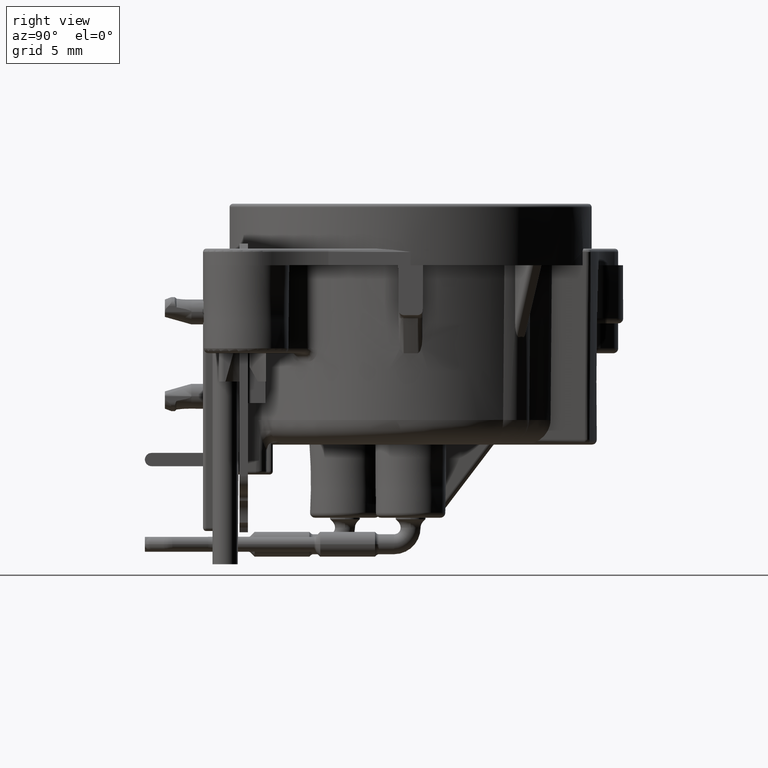
[diagram: clean part render]
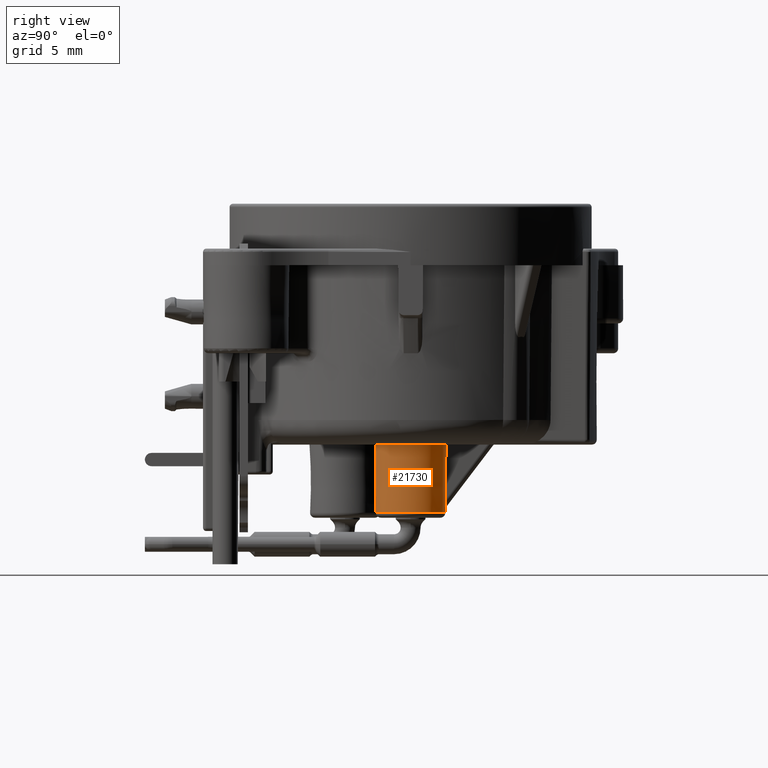
[diagram: same view with one face highlighted and labeled with its STEP entity id]
A machine part, right view. The second image highlights one B-rep face of the part: STEP entity #21730.
In plain terms, the highlighted conical surface has half-angle 0.5 deg.
Its self-contained STEP definition (entity closure, byte-faithful):
#6581=CARTESIAN_POINT('',(1.980489357724E0,-5.383982182793E-1,-1.18E1));
#6582=CARTESIAN_POINT('',(1.988928998002E0,-5.274820149220E-1,
-1.305087300725E1));
#6583=CARTESIAN_POINT('',(1.997464161577E0,-5.165539626903E-1,
-1.430311819689E1));
#6584=CARTESIAN_POINT('',(2.006009099924E0,-5.056377655712E-1,
-1.555399048932E1));
#6586=CARTESIAN_POINT('',(2.006009099924E0,-5.056377655712E-1,
-1.555399048932E1));
#6587=CARTESIAN_POINT('',(2.006228455418E0,-5.053575379414E-1,
-1.558610139514E1));
#6588=CARTESIAN_POINT('',(2.003987130317E0,-4.943450650057E-1,
-1.564754890738E1));
#6589=CARTESIAN_POINT('',(1.994530104850E0,-4.508091535841E-1,
-1.573120962901E1));
#6590=CARTESIAN_POINT('',(1.981372428743E0,-3.841057397560E-1,
-1.579724026745E1));
#6591=CARTESIAN_POINT('',(1.967589306874E0,-2.991762042641E-1,
-1.584009149740E1));
#6592=CARTESIAN_POINT('',(1.960103852894E0,-2.368593591161E-1,
-1.585035618525E1));
#6593=CARTESIAN_POINT('',(1.957038207509E0,-2.056610405483E-1,
-1.585035618525E1));
#6699=CARTESIAN_POINT('',(1.980489357724E0,5.383982182793E-1,-1.18E1));
#6700=CARTESIAN_POINT('',(1.988928998002E0,5.274820149220E-1,
-1.305087300725E1));
#6701=CARTESIAN_POINT('',(1.997444043418E0,5.165576470532E-1,
-1.430269151965E1));
#6702=CARTESIAN_POINT('',(2.005988945718E0,5.056414499320E-1,
-1.555356381232E1));
#6718=CARTESIAN_POINT('',(1.957038207509E0,2.056610405483E-1,
-1.585035618525E1));
#6719=CARTESIAN_POINT('',(1.960112263525E0,2.369449520321E-1,
-1.585035618525E1));
#6720=CARTESIAN_POINT('',(1.967621577743E0,2.994286560157E-1,
-1.584003927119E1));
#6721=CARTESIAN_POINT('',(1.981448427537E0,3.845311968855E-1,
-1.579695876226E1));
#6722=CARTESIAN_POINT('',(1.994622029464E0,4.512618297159E-1,
-1.573065011357E1));
#6723=CARTESIAN_POINT('',(2.004092464850E0,4.947822606947E-1,
-1.564644064191E1));
#6724=CARTESIAN_POINT('',(2.006204403477E0,5.053662005154E-1,
-1.558510427141E1));
#6725=CARTESIAN_POINT('',(2.005988945718E0,5.056414499320E-1,
-1.555356381232E1));
#6727=DIRECTION('',(6.834157321821E-3,-8.742222077015E-3,-9.999384320281E-1));
#6728=VECTOR('',#6727,5.190878607741E-2);
#6729=CARTESIAN_POINT('',(2.008009166078E0,5.030496621423E-1,
-1.585071237049E1));
#6730=LINE('',#6729,#6728);
#6731=CARTESIAN_POINT('',(4.05E0,0.E0,-1.590261797298E1));
#6732=DIRECTION('',(0.E0,0.E0,1.E0));
#6733=DIRECTION('',(-9.710108376083E-1,-2.390354644132E-1,0.E0));
#6734=AXIS2_PLACEMENT_3D('',#6731,#6732,#6733);
#6736=DIRECTION('',(6.836263224323E-3,8.733711347675E-3,-9.999384920040E-1));
#6737=VECTOR('',#6736,5.190889146444E-2);
#6738=CARTESIAN_POINT('',(2.008008433970E0,-5.030466943010E-1,
-1.585071226200E1));
#6739=LINE('',#6738,#6737);
#6740=CARTESIAN_POINT('',(4.05E0,0.E0,-1.18E1));
#6741=DIRECTION('',(0.E0,0.E0,1.E0));
#6742=DIRECTION('',(-9.677854314438E-1,-2.517764061329E-1,0.E0));
#6743=AXIS2_PLACEMENT_3D('',#6740,#6741,#6742);
#6745=CARTESIAN_POINT('',(4.05E0,0.E0,-1.585E1));
#6746=DIRECTION('',(0.E0,0.E0,1.E0));
#6747=DIRECTION('',(-9.952068585160E-1,-9.779217127495E-2,0.E0));
#6748=AXIS2_PLACEMENT_3D('',#6745,#6746,#6747);
#6755=CARTESIAN_POINT('',(4.05E0,0.E0,-1.585E1));
#6756=DIRECTION('',(0.E0,0.E0,1.E0));
#6757=DIRECTION('',(-9.709695264072E-1,2.392032165097E-1,0.E0));
#6758=AXIS2_PLACEMENT_3D('',#6755,#6756,#6757);
#11999=CARTESIAN_POINT('',(1.980489357724E0,-5.383982182793E-1,-1.18E1));
#12001=VERTEX_POINT('',#11999);
#12016=CARTESIAN_POINT('',(1.980489357724E0,5.383982182793E-1,-1.18E1));
#12018=VERTEX_POINT('',#12016);
#12267=CARTESIAN_POINT('',(1.957038207509E0,-2.056610405483E-1,
-1.585035618525E1));
#12268=VERTEX_POINT('',#12267);
#12269=CARTESIAN_POINT('',(2.006009099924E0,-5.056377655712E-1,
-1.555399048932E1));
#12270=VERTEX_POINT('',#12269);
#12271=CARTESIAN_POINT('',(2.008009601492E0,-5.030514296049E-1,-1.585E1));
#12272=VERTEX_POINT('',#12271);
#12275=CARTESIAN_POINT('',(2.008369955388E0,5.025943784328E-1,
-1.590261794326E1));
#12276=CARTESIAN_POINT('',(2.008369333296E0,-5.025918513720E-1,
-1.590261794326E1));
#12277=VERTEX_POINT('',#12275);
#12278=VERTEX_POINT('',#12276);
#12283=CARTESIAN_POINT('',(2.005988945718E0,5.056414499320E-1,
-1.555356381232E1));
#12285=VERTEX_POINT('',#12283);
#12287=CARTESIAN_POINT('',(1.957038207509E0,2.056610405483E-1,
-1.585035618525E1));
#12289=VERTEX_POINT('',#12287);
#12301=CARTESIAN_POINT('',(2.008010334180E0,5.030544037268E-1,-1.585E1));
#12302=VERTEX_POINT('',#12301);
#21708=CARTESIAN_POINT('',(4.05E0,0.E0,-1.385130902199E1));
#21709=DIRECTION('',(0.E0,0.E0,1.E0));
#21710=DIRECTION('',(1.E0,0.E0,0.E0));
#21711=AXIS2_PLACEMENT_3D('',#21708,#21709,#21710);
#21712=CONICAL_SURFACE('',#21711,2.120496715646E0,5.E-1);
#21713=ORIENTED_EDGE('',*,*,#21688,.T.);
#21714=ORIENTED_EDGE('',*,*,#21703,.F.);
#21716=ORIENTED_EDGE('',*,*,#21715,.F.);
#21718=ORIENTED_EDGE('',*,*,#21717,.T.);
#21720=ORIENTED_EDGE('',*,*,#21719,.F.);
#21722=ORIENTED_EDGE('',*,*,#21721,.F.);
#21724=ORIENTED_EDGE('',*,*,#21723,.F.);
#21725=ORIENTED_EDGE('',*,*,#21582,.F.);
#21726=ORIENTED_EDGE('',*,*,#21568,.F.);
#21727=ORIENTED_EDGE('',*,*,#15681,.T.);
#21728=EDGE_LOOP('',(#21713,#21714,#21716,#21718,#21720,#21722,#21724,#21725,
#21726,#21727));
#21729=FACE_OUTER_BOUND('',#21728,.F.);
#21730=ADVANCED_FACE('',(#21729),#21712,.T.);
#6585=B_SPLINE_CURVE_WITH_KNOTS('',3,(#6581,#6582,#6583,#6584),.UNSPECIFIED.,
.F.,.F.,(4,4),(0.E0,1.E0),.UNSPECIFIED.);
#6594=B_SPLINE_CURVE_WITH_KNOTS('',3,(#6586,#6587,#6588,#6589,#6590,#6591,#6592,
#6593),.UNSPECIFIED.,.F.,.F.,(4,1,1,1,1,4),(0.E0,2.E-1,4.E-1,6.E-1,8.E-1,1.E0),
.UNSPECIFIED.);
#6703=B_SPLINE_CURVE_WITH_KNOTS('',3,(#6699,#6700,#6701,#6702),.UNSPECIFIED.,
.F.,.F.,(4,4),(0.E0,1.E0),.UNSPECIFIED.);
#6726=B_SPLINE_CURVE_WITH_KNOTS('',3,(#6718,#6719,#6720,#6721,#6722,#6723,#6724,
#6725),.UNSPECIFIED.,.F.,.F.,(4,1,1,1,1,4),(0.E0,2.E-1,4.E-1,6.E-1,8.E-1,1.E0),
.UNSPECIFIED.);
#6735=CIRCLE('',#6734,2.102595213633E0);
#6744=CIRCLE('',#6743,2.138398218279E0);
#6749=CIRCLE('',#6748,2.103041970201E0);
#6759=CIRCLE('',#6758,2.103041970201E0);
#15681=EDGE_CURVE('',#12001,#12018,#6744,.T.);
#21568=EDGE_CURVE('',#12001,#12270,#6585,.T.);
#21582=EDGE_CURVE('',#12270,#12268,#6594,.T.);
#21688=EDGE_CURVE('',#12018,#12285,#6703,.T.);
#21703=EDGE_CURVE('',#12289,#12285,#6726,.T.);
#21715=EDGE_CURVE('',#12302,#12289,#6759,.T.);
#21717=EDGE_CURVE('',#12302,#12277,#6730,.T.);
#21719=EDGE_CURVE('',#12278,#12277,#6735,.T.);
#21721=EDGE_CURVE('',#12272,#12278,#6739,.T.);
#21723=EDGE_CURVE('',#12268,#12272,#6749,.T.);